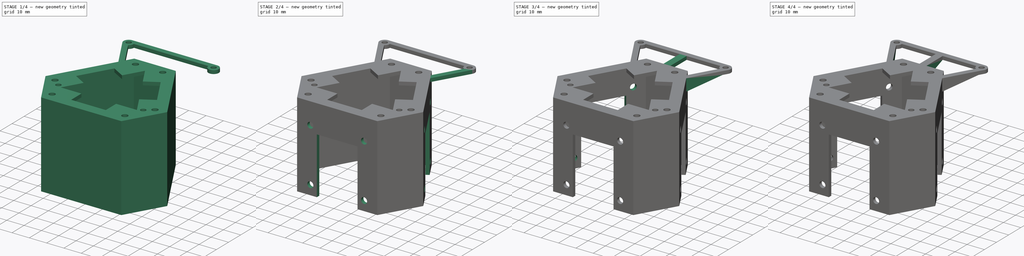
[diagram: build sequence overview — one tinted view per stage of 4, left to right]
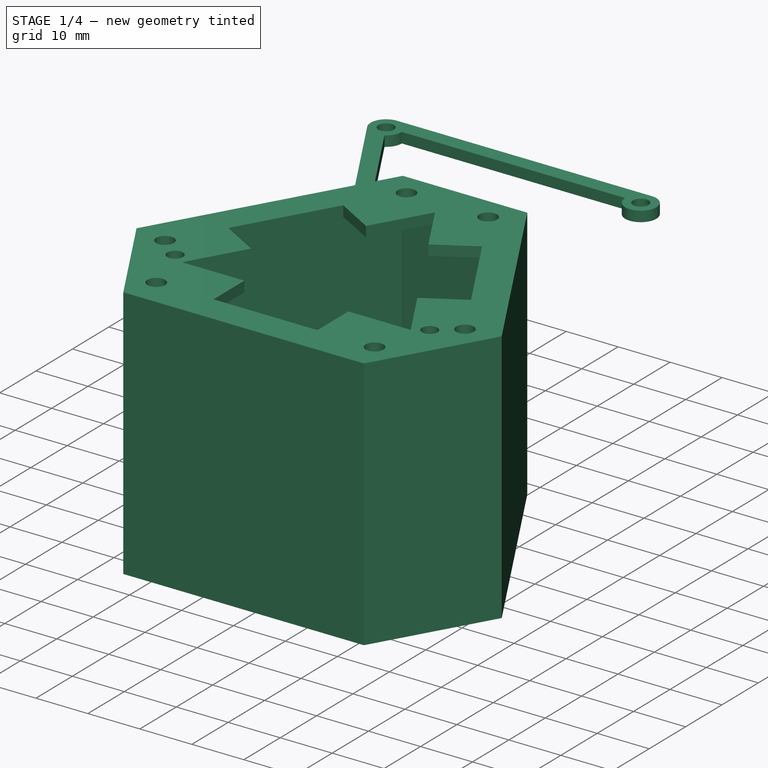
[diagram: stage 1 of 4 — iso view after this stage's code; geometry added in this stage tinted green]
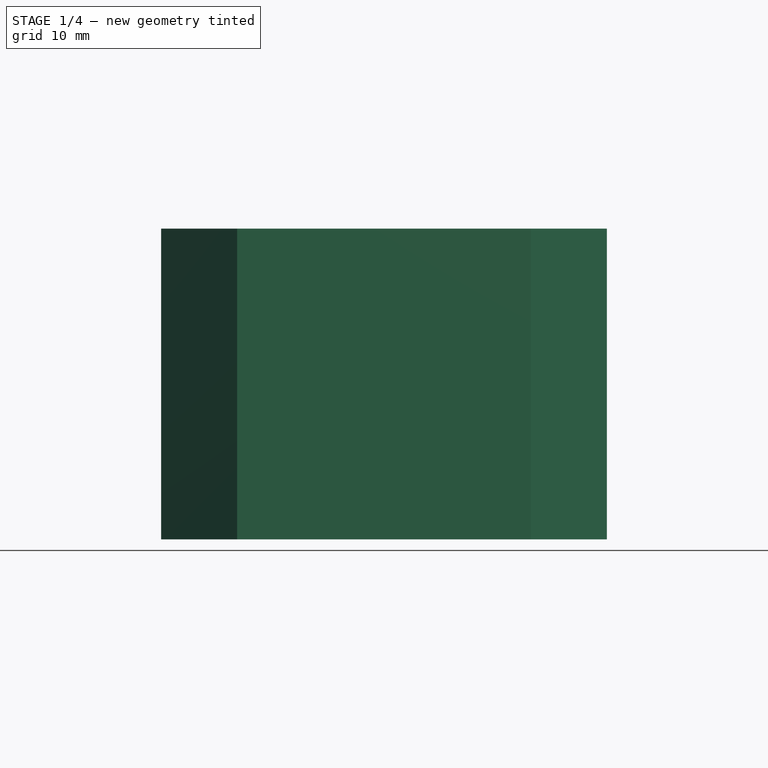
[diagram: stage 1 of 4 — front view after this stage's code; geometry added in this stage tinted green]
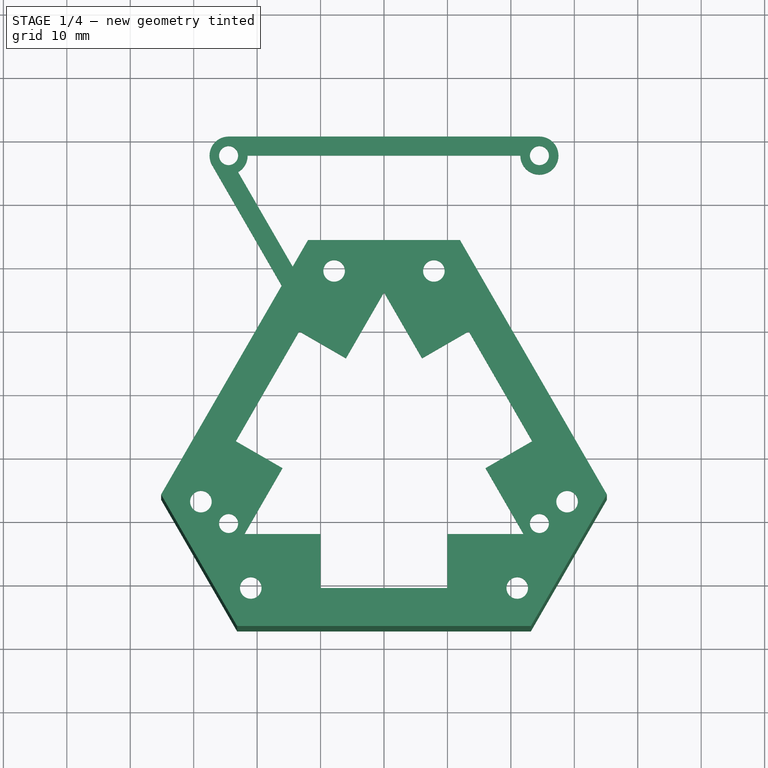
[diagram: stage 1 of 4 — top view after this stage's code; geometry added in this stage tinted green]
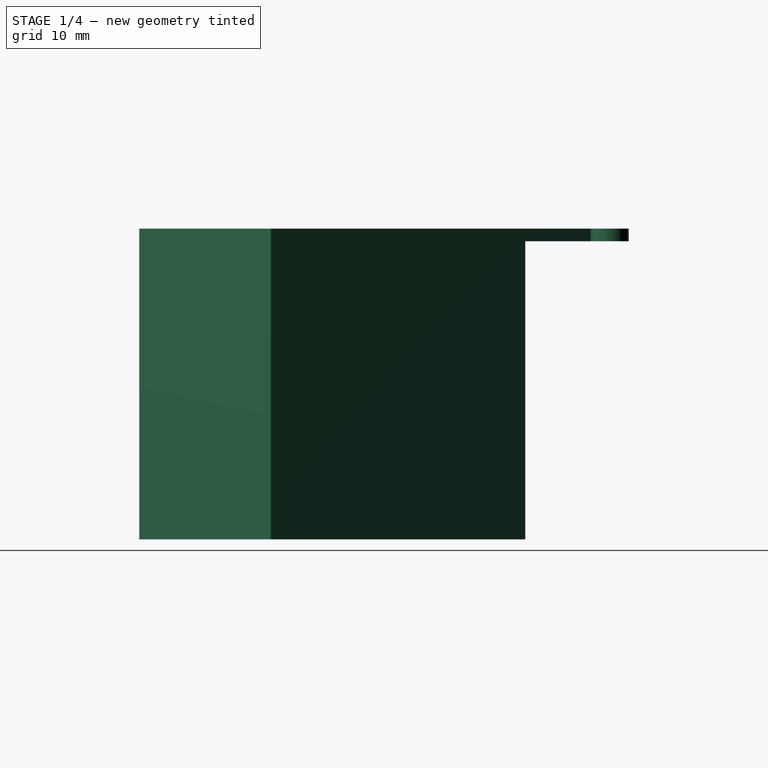
[diagram: stage 1 of 4 — right view after this stage's code; geometry added in this stage tinted green]
FCSTD DOCUMENT  (FreeCAD 1.1R20260325 (Git shallow))
Label: body
License: All rights reserved
LicenseURL: https://en.wikipedia.org/wiki/All_rights_reserved
objects: Sketcher::SketchObject×10, PartDesign::Pad×7, PartDesign::Pocket×3, App::Point×1, PartDesign::Body×1
note: 51 computed .brp shape members not serialized (recipe doc carries the construction recipe); baked Part::Feature solids carry a one-line shape summary decoded from their .brp

FEATURE [App::Point] Origin001  label="原点"
  Role = Origin
FEATURE [Sketcher::SketchObject] Sketch
  ArcFitTolerance = 1e-06
  AttachmentSupport = -> [Origin]
  ExternalTypes = [0]
  FullyConstrained = true
  MakeInternals = false
  MapMode = 5
  _ExternalGeoVersion = 1
  sketch-geometry (22):
    g0: LineSegment [constr] StartX=7.1e-15 StartY=25.4034 StartZ=0 EndX=-22 EndY=-12.7017 EndZ=0
    g1: LineSegment [constr] StartX=-22 StartY=-12.7017 StartZ=0 EndX=22 EndY=-12.7017 EndZ=0
    g2: LineSegment [constr] StartX=22 StartY=-12.7017 StartZ=0 EndX=7.1e-15 EndY=25.4034 EndZ=0
    g3: Circle [constr] CenterX=0 CenterY=0 CenterZ=0 NormalX=0 NormalY=0 NormalZ=1 AngleXU=0 Radius=25.4034
    g4: LineSegment [constr] StartX=7.1e-15 StartY=25.4034 StartZ=0 EndX=10.8253 EndY=31.6534 EndZ=0
    g5: LineSegment [constr] StartX=22 StartY=-12.7017 StartZ=0 EndX=32.8253 EndY=-6.45171 EndZ=0
    g6: LineSegment [constr] StartX=22 StartY=-12.7017 StartZ=0 EndX=22 EndY=-25.2017 EndZ=0
    g7: LineSegment [constr] StartX=-22 StartY=-12.7017 StartZ=0 EndX=-22 EndY=-25.2017 EndZ=0
    g8: LineSegment [constr] StartX=-22 StartY=-12.7017 StartZ=0 EndX=-32.8253 EndY=-6.45171 EndZ=0
    g9: LineSegment [constr] StartX=7.1e-15 StartY=25.4034 StartZ=0 EndX=-10.8253 EndY=31.6534 EndZ=0
    g10: LineSegment StartX=-10.8253 StartY=31.6534 StartZ=0 EndX=10.8253 EndY=31.6534 EndZ=0
    g11: LineSegment StartX=10.8253 StartY=31.6534 StartZ=0 EndX=32.8253 EndY=-6.45171 EndZ=0
    g12: LineSegment StartX=32.8253 StartY=-6.45171 StartZ=0 EndX=22 EndY=-25.2017 EndZ=0
    g13: LineSegment StartX=22 StartY=-25.2017 StartZ=0 EndX=-22 EndY=-25.2017 EndZ=0
    g14: LineSegment StartX=-22 StartY=-25.2017 StartZ=0 EndX=-32.8253 EndY=-6.45171 EndZ=0
    g15: LineSegment StartX=-32.8253 StartY=-6.45171 StartZ=0 EndX=-10.8253 EndY=31.6534 EndZ=0
    g16: LineSegment StartX=-11.98 StartY=33.6534 StartZ=0 EndX=11.98 EndY=33.6534 EndZ=0
    g17: LineSegment StartX=11.98 StartY=33.6534 StartZ=0 EndX=35.1347 EndY=-6.45171 EndZ=0
    g18: LineSegment StartX=35.1347 StartY=-6.45171 StartZ=0 EndX=23.1547 EndY=-27.2017 EndZ=0
    g19: LineSegment StartX=23.1547 StartY=-27.2017 StartZ=0 EndX=-23.1547 EndY=-27.2017 EndZ=0
    g20: LineSegment StartX=-23.1547 StartY=-27.2017 StartZ=0 EndX=-35.1347 EndY=-6.45171 EndZ=0
    g21: LineSegment StartX=-35.1347 StartY=-6.45171 StartZ=0 EndX=-11.98 EndY=33.6534 EndZ=0
  constraints (59):
    c: Coincident(g0,g1)
    c: Coincident(g1,g2)
    c: Coincident(g2,g0)
    c: Equal(g0,g1)
    c: Equal(g0,g2)
    c: PointOnObject(g0,g3)
    c: PointOnObject(g1,g3)
    c: PointOnObject(g2,g3)
    c: Coincident(g3,g-1)
    c: PointOnObject(g2,g-2)
    c: Distance(g0,g0) = 44  'モータ内部'
    c: Coincident(g4,g0)
    c: Perpendicular(g2,g4)
    c: Distance(g4,g4) = 12.5  'モータ厚み'
    c: Coincident(g5,g1)
    c: Coincident(g6,g1)
    c: Coincident(g7,g0)
    c: Coincident(g8,g0)
    c: Coincident(g9,g0)
    c: Perpendicular(g2,g5)
    c: Perpendicular(g1,g6)
    c: Perpendicular(g7,g1)
    c: Perpendicular(g8,g0)
    c: Perpendicular(g9,g0)
    c: Equal(g4,g5)
    c: Equal(g5,g6)
    c: Equal(g7,g8)
    c: Equal(g8,g9)
    c: Coincident(g9,g10)
    c: Coincident(g10,g4)
    c: Horizontal(g10)
    c: Coincident(g10,g11)
    c: Coincident(g11,g5)
    c: Coincident(g11,g12)
    c: Coincident(g12,g6)
    c: Coincident(g12,g13)
    c: Coincident(g13,g7)
    c: Coincident(g13,g14)
    c: Coincident(g14,g8)
    c: Coincident(g14,g15)
    c: Coincident(g15,g10)
    c: Horizontal(g16)
    c: Coincident(g16,g17)
    c: Coincident(g17,g18)
    c: Coincident(g18,g19)
    c: Horizontal(g19)
    c: Coincident(g19,g20)
    c: Coincident(g20,g21)
    c: Coincident(g21,g16)
    c: Parallel(g21,g15)
    c: Parallel(g17,g11)
    c: Parallel(g12,g18)
    c: Distance(g9,g16) = 2
    c: Distance(g4,g17) = 2
    c: Distance(g5,g18) = 2
    c: Distance(g6,g19) = 2
    c: Distance(g7,g20) = 2
    c: Distance(g8,g21) = 2
    c: Parallel(g14,g20)
FEATURE [PartDesign::Pad] Pad
  Direction = (0,0,1)
  Length = 47
  Length2 = 10
  Profile = -> Sketch
  ReferenceAxis = -> Sketch [N_Axis]
  Refine = true
  Reversed = true
  SideType = 0
  Suppressed = false
  Type = 0
  Type2 = 0
FEATURE [Sketcher::SketchObject] Sketch002
  ArcFitTolerance = 1e-06
  AttachmentSupport = -> [Pad]
  ExternalGeometry = -> [Pad]
  ExternalTypes = [0,0,0,0,0,0,0,0,0]
  FullyConstrained = false
  MakeInternals = false
  MapMode = 5
  _ExternalGeoVersion = 1
  sketch-geometry (45):
    g0: LineSegment [constr] StartX=-10.8253 StartY=31.6534 StartZ=0 EndX=0 EndY=25.4034 EndZ=0
    g1: LineSegment [constr] StartX=0 StartY=25.4034 StartZ=0 EndX=10.8253 EndY=31.6534 EndZ=0
    g2: LineSegment StartX=0 StartY=25.4034 StartZ=0 EndX=-6 EndY=15.0111 EndZ=0
    g3: LineSegment StartX=0 StartY=25.4034 StartZ=0 EndX=6 EndY=15.0111 EndZ=0
    g4: LineSegment StartX=-22 StartY=-12.7017 StartZ=0 EndX=-10 EndY=-12.7017 EndZ=0
    g5: Circle CenterX=-7.86122 CenterY=28.7874 CenterZ=0 NormalX=0 NormalY=0 NormalZ=1 AngleXU=0 Radius=1.7
    g6: LineSegment [constr] StartX=-7.86122 StartY=28.7874 StartZ=0 EndX=-28.8612 EndY=-7.58568 EndZ=0
    g7: Circle CenterX=-28.8612 CenterY=-7.58568 CenterZ=0 NormalX=0 NormalY=0 NormalZ=1 AngleXU=0 Radius=1.7
    g8: Circle CenterX=7.86122 CenterY=28.7874 CenterZ=0 NormalX=0 NormalY=0 NormalZ=1 AngleXU=0 Radius=1.7
    g9: Circle CenterX=28.8612 CenterY=-7.58568 CenterZ=0 NormalX=0 NormalY=0 NormalZ=1 AngleXU=0 Radius=1.7
    g10: Circle CenterX=-21 CenterY=-21.2017 CenterZ=0 NormalX=0 NormalY=0 NormalZ=1 AngleXU=0 Radius=1.7
    g11: Circle CenterX=21 CenterY=-21.2017 CenterZ=0 NormalX=0 NormalY=0 NormalZ=1 AngleXU=0 Radius=1.7
    g12: LineSegment [constr] StartX=7.86122 StartY=28.7874 StartZ=0 EndX=28.8612 EndY=-7.58568 EndZ=0
    g13: LineSegment [constr] StartX=-22 StartY=-12.7017 StartZ=0 EndX=-22 EndY=-25.2017 EndZ=0
    g14: LineSegment [constr] StartX=-21 StartY=-21.2017 StartZ=0 EndX=21 EndY=-21.2017 EndZ=0
    g15: LineSegment [constr] StartX=-24.5 StartY=46.9682 StartZ=0 EndX=-24.5 EndY=-11.0318 EndZ=0
    g16: LineSegment [constr] StartX=-24.5 StartY=-11.0318 StartZ=0 EndX=24.5 EndY=-11.0318 EndZ=0
    g17: LineSegment [constr] StartX=24.5 StartY=-11.0318 StartZ=0 EndX=24.5 EndY=46.9682 EndZ=0
    g18: LineSegment [constr] StartX=24.5 StartY=46.9682 StartZ=0 EndX=-24.5 EndY=46.9682 EndZ=0
    g19: Circle CenterX=24.5 CenterY=46.9682 CenterZ=0 NormalX=0 NormalY=0 NormalZ=1 AngleXU=0 Radius=1.5
    g20: Circle CenterX=-24.5 CenterY=-11.0318 CenterZ=0 NormalX=0 NormalY=0 NormalZ=1 AngleXU=0 Radius=1.5
    g21: Circle CenterX=24.5 CenterY=-11.0318 CenterZ=0 NormalX=0 NormalY=0 NormalZ=1 AngleXU=0 Radius=1.5
    g22: Circle CenterX=-24.5 CenterY=46.9682 CenterZ=0 NormalX=0 NormalY=0 NormalZ=1 AngleXU=0 Radius=1.5
    g23: ArcOfCircle CenterX=-24.5 CenterY=46.9682 CenterZ=0 NormalX=0 NormalY=0 NormalZ=1 AngleXU=0 Radius=3 StartAngle=1.5708 EndAngle=3.66519
    g24: ArcOfCircle CenterX=24.5 CenterY=46.9682 CenterZ=0 NormalX=0 NormalY=0 NormalZ=1 AngleXU=0 Radius=3 StartAngle=3.14159 EndAngle=7.85396
    g25: LineSegment StartX=-24.5 StartY=49.9682 StartZ=0 EndX=24.5001 EndY=49.9682 EndZ=0
    g26: LineSegment StartX=-21.5 StartY=46.9682 StartZ=0 EndX=21.5 EndY=46.9682 EndZ=0
    g27: LineSegment StartX=-11.98 StartY=33.6534 StartZ=0 EndX=-14.3964 EndY=29.4682 EndZ=0
    g28: LineSegment StartX=-27.0981 StartY=45.4682 StartZ=0 EndX=-16.1284 EndY=26.4682 EndZ=0
    g29: LineSegment StartX=-23 StartY=44.3701 StartZ=0 EndX=-14.3964 EndY=29.4682 EndZ=0
    g30: ArcOfCircle CenterX=-24.5 CenterY=46.9682 CenterZ=0 NormalX=0 NormalY=0 NormalZ=1 AngleXU=0 Radius=3 StartAngle=5.23599 EndAngle=6.28319
    g31: LineSegment StartX=-16.1284 StartY=26.4682 StartZ=0 EndX=-35.1347 EndY=-6.45171 EndZ=0
    g32: LineSegment StartX=11.98 StartY=33.6534 StartZ=0 EndX=35.1347 EndY=-6.45171 EndZ=0
    g33: LineSegment StartX=-6 StartY=15.0111 StartZ=0 EndX=-13.3612 EndY=19.2611 EndZ=0
    g34: LineSegment StartX=-13.3612 StartY=19.2611 StartZ=0 EndX=-23.3612 EndY=1.9406 EndZ=0
    g35: LineSegment StartX=-23.3612 StartY=1.9406 StartZ=0 EndX=-16 EndY=-2.3094 EndZ=0
    g36: LineSegment StartX=-16 StartY=-2.3094 StartZ=0 EndX=-22 EndY=-12.7017 EndZ=0
    g37: LineSegment StartX=6 StartY=15.0111 StartZ=0 EndX=13.3612 EndY=19.2611 EndZ=0
    g38: LineSegment StartX=13.3612 StartY=19.2611 StartZ=0 EndX=23.3612 EndY=1.9406 EndZ=0
    g39: LineSegment StartX=23.3612 StartY=1.9406 StartZ=0 EndX=16 EndY=-2.3094 EndZ=0
    g40: LineSegment StartX=16 StartY=-2.3094 StartZ=0 EndX=22 EndY=-12.7017 EndZ=0
    g41: LineSegment StartX=-10 StartY=-12.7017 StartZ=0 EndX=-10 EndY=-21.2017 EndZ=0
    g42: LineSegment StartX=-10 StartY=-21.2017 StartZ=0 EndX=10 EndY=-21.2017 EndZ=0
    g43: LineSegment StartX=10 StartY=-21.2017 StartZ=0 EndX=10 EndY=-12.7017 EndZ=0
    g44: LineSegment StartX=10 StartY=-12.7017 StartZ=0 EndX=22 EndY=-12.7017 EndZ=0
  constraints (119):
    c: Coincident(g0,g-9)
    c: PointOnObject(g0,g-2)
    c: Perpendicular(g-9,g0)
    c: Coincident(g1,g0)
    c: Coincident(g1,g-7)
    c: Coincident(g2,g0)
    c: Coincident(g3,g0)
    c: Coincident(g4,g36)
    c: Coincident(g44,g40)
    c: Distance(g5,g-9) = 4
    c: Distance(g5,g0) = 1
    c: Diameter(g5) = 3.4
    c: Distance(g6) = 42
    c: Coincident(g6,g5)
    c: Parallel(g6,g-9)
    c: Coincident(g7,g6)
    c: Equal(g5,g7)
    c: Equal(g5,g8)
    c: Equal(g5,g9)
    c: Equal(g5,g11)
    c: Equal(g5,g10)
    c: Distance(g8,g-7) = 4
    c: Distance(g8,g1) = 1
    c: Coincident(g12,g8)
    c: Coincident(g12,g9)
    c: Equal(g12,g6)
    c: Parallel(g-7,g12)
    c: Coincident(g13,g36)
    c: Coincident(g13,g-8)
    c: Distance(g10,g-8) = 4
    c: Coincident(g14,g10)
    c: Coincident(g14,g11)
    c: Parallel(g14,g-8)
    c: Coincident(g15,g16)
    c: Coincident(g16,g17)
    c: Coincident(g17,g18)
    c: Coincident(g18,g15)
    c: Vertical(g15)
    c: Vertical(g17)
    c: Horizontal(g16)
    c: Horizontal(g18)
    c: Distance(g15,g17) = 49
    c: Distance(g16,g18) = 58
    c: Distance(g17,g-2) = 24.5
    c: Coincident(g19,g17)
    c: Coincident(g20,g15)
    c: Coincident(g21,g16)
    c: Diameter(g19) = 3
    c: Equal(g19,g21)
    c: Equal(g19,g20)
    c: Coincident(g22,g15)
    c: Equal(g19,g22)
    c: Coincident(g23,g15)
    c: Coincident(g24,g17)
    c: Horizontal(g25)
    c: Horizontal(g26)
    c: Distance(g26,g25) = 3
    c: Tangent(g25,g23) = 1.5708
    c: PointOnObject(g30,g18)
    c: Diameter(g24) = 6
    c: Coincident(g25,g24)
    c: PointOnObject(g26,g24)
    c: PointOnObject(g24,g18)
    c: Coincident(g27,g-3)
    c: Coincident(g31,g-6)
    c: Angle(g28,g18) = 1.0472
    c: Parallel(g29,g28)
    c: Distance(g29,g28) = 3
    c: PointOnObject(g26,g30)
    c: Coincident(g29,g30)
    c: Coincident(g23,g30)
    c: Tangent(g28,g23) = -1.5708
    c: Coincident(g28,g31)
    c: Coincident(g29,g27)
    c: Coincident(g32,g-3)
    c: Coincident(g32,g-4)
    c: Coincident(g33,g34)
    c: Coincident(g34,g35)
    c: Parallel(g0,g33)
    c: Parallel(g33,g35)
    c: Distance(g33,g0) = 12
    c: Perpendicular(g34,g33)
    c: Distance(g34,g34) = 20
    c: Distance(g33,g-9) = 4
    c: Parallel(g2,g-9)
    c: Parallel(g36,g-9)
    c: Coincident(g33,g2)
    c: Coincident(g35,g36)
    c: Coincident(g37,g38)
    c: Coincident(g38,g39)
    c: Parallel(g37,g1)
    c: Parallel(g37,g39)
    c: Distance(g37,g1) = 12
    c: Perpendicular(g37,g38)
    c: Distance(g38,g38) = 20
    c: Distance(g37,g-7) = 4
    c: Parallel(g3,g-7)
    c: Parallel(g40,g-7)
    c: Distance(g16,g40) = 3
    c: Coincident(g37,g3)
    c: Coincident(g39,g40)
    c: Vertical(g41)
    c: Coincident(g41,g42)
    c: Horizontal(g42)
    c: Coincident(g42,g43)
    c: Vertical(g43)
    c: Distance(g42) = 20
    c: Distance(g42,g-8) = 4
    c: Distance(g4,g41) = 12
    c: Coincident(g41,g4)
    c: Coincident(g43,g44)
    c: Vertical(g13)
    c: Distance(g44) = 12
    c: Equal(g3,g40)
    c: Equal(g2,g36)
    c: Horizontal(g4)
    c: Horizontal(g44)
    c: Distance(g10,g13) = 1
    c: DistanceX(g14,g14) = 42
FEATURE [PartDesign::Pad] Pad001
  BaseFeature = -> Pad
  Direction = (0,0,1)
  Length = 2
  Length2 = 10
  Profile = -> Sketch002
  ReferenceAxis = -> Sketch002 [N_Axis]
  Refine = true
  SideType = 0
  Suppressed = false
  Type = 0
  Type2 = 0
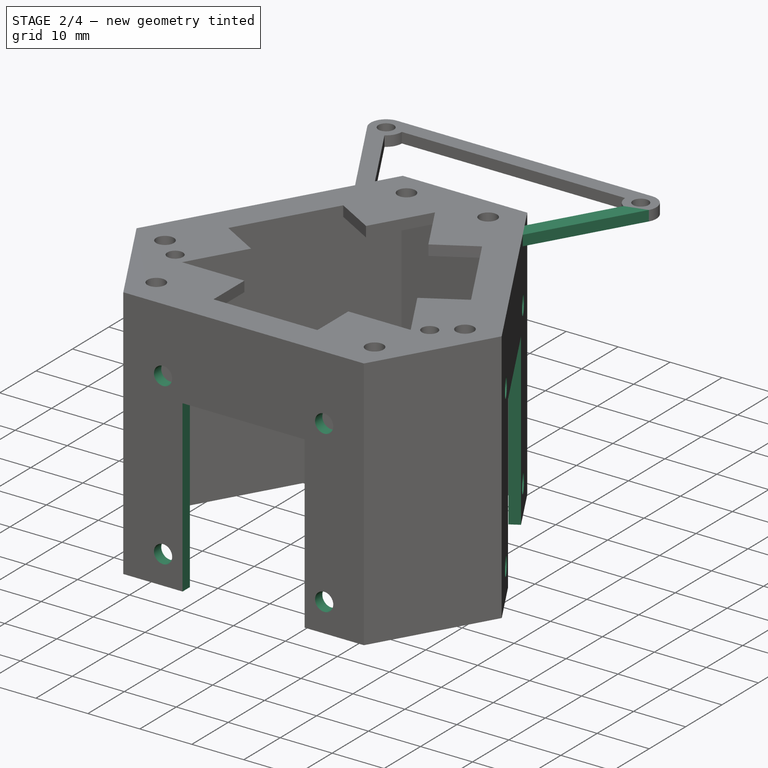
[diagram: stage 2 of 4 — iso view after this stage's code; geometry added in this stage tinted green]
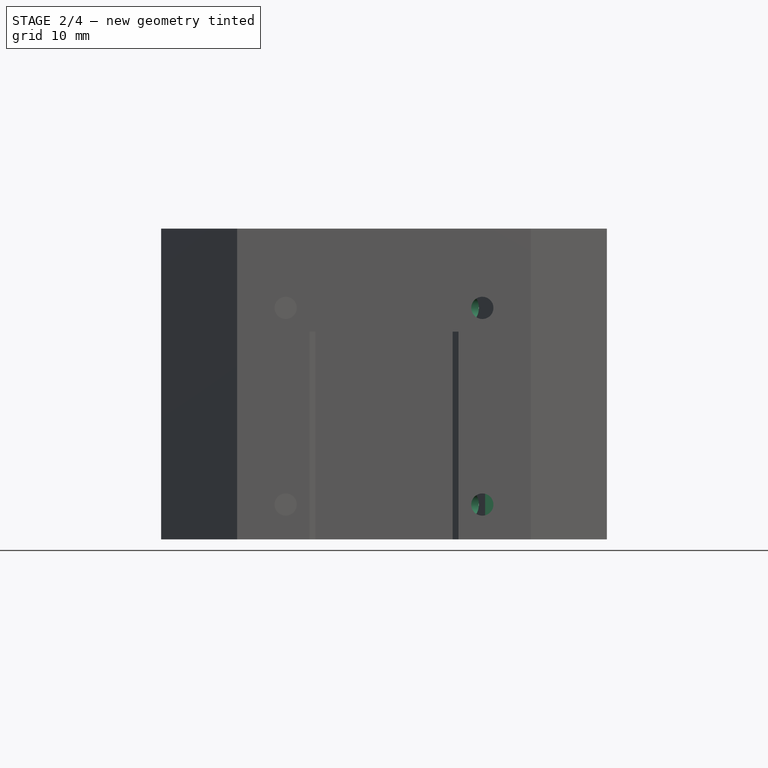
[diagram: stage 2 of 4 — front view after this stage's code; geometry added in this stage tinted green]
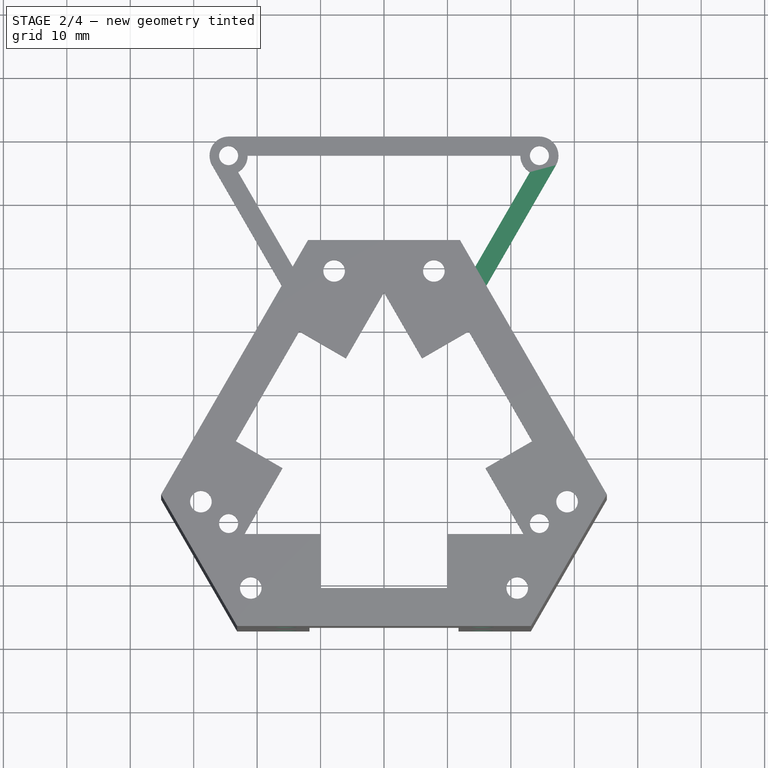
[diagram: stage 2 of 4 — top view after this stage's code; geometry added in this stage tinted green]
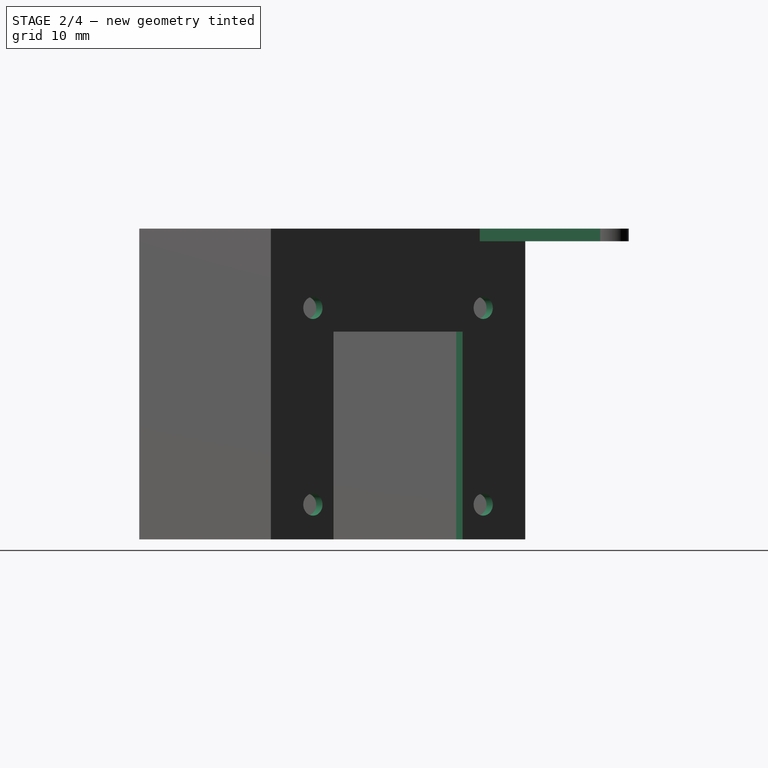
[diagram: stage 2 of 4 — right view after this stage's code; geometry added in this stage tinted green]
FEATURE [Sketcher::SketchObject] Sketch003
  ArcFitTolerance = 1e-06
  AttachmentSupport = -> [Pad001]
  ExternalGeometry = -> [Pad001]
  ExternalTypes = [0,0,0]
  FullyConstrained = true
  MakeInternals = false
  MapMode = 5
  Placement = pos=(0,0,0) rot=(1,0,0;3.14159rad)
  _ExternalGeoVersion = 1
  sketch-geometry (4):
    g0: LineSegment StartX=16.1284 StartY=-26.4682 StartZ=0 EndX=27.0981 EndY=-45.4682 EndZ=0
    g1: LineSegment StartX=23 StartY=-44.3701 StartZ=0 EndX=14.3964 EndY=-29.4682 EndZ=0
    g2: LineSegment StartX=16.1284 StartY=-26.4682 StartZ=0 EndX=14.3964 EndY=-29.4682 EndZ=0
    g3: LineSegment StartX=27.0981 StartY=-45.4682 StartZ=0 EndX=23 EndY=-44.3701 EndZ=0
  constraints (11):
    c: PointOnObject(g0,g-4)
    c: Tangent(g0,g-3) = 1.5708
    c: Angle(g0,g-5) = 1.0472
    c: PointOnObject(g1,g-3)
    c: PointOnObject(g1,g-4)
    c: Parallel(g0,g1)
    c: Distance(g1,g0) = 3
    c: Coincident(g2,g0)
    c: Coincident(g2,g1)
    c: Coincident(g3,g0)
    c: Coincident(g3,g1)
FEATURE [PartDesign::Pad] Pad002
  BaseFeature = -> Pad001
  Direction = (0,0,-1)
  Length = 2
  Length2 = 10
  Profile = -> Sketch003
  ReferenceAxis = -> Sketch003 [N_Axis]
  Refine = true
  Reversed = true
  SideType = 0
  Suppressed = false
  Type = 0
  Type2 = 0
FEATURE [Sketcher::SketchObject] Sketch004
  ArcFitTolerance = 1e-06
  AttachmentSupport = -> [Pad002]
  ExternalGeometry = -> [Pad002]
  ExternalTypes = [0]
  FullyConstrained = true
  MakeInternals = false
  MapMode = 5
  Placement = pos=(0,-27.2017,0) rot=(1,0,0;1.5708rad)
  _ExternalGeoVersion = 1
  sketch-geometry (12):
    g0: LineSegment [constr] StartX=-15.5 StartY=-10.5 StartZ=0 EndX=-15.5 EndY=-41.5 EndZ=0
    g1: LineSegment [constr] StartX=-15.5 StartY=-41.5 StartZ=0 EndX=15.5 EndY=-41.5 EndZ=0
    g2: LineSegment [constr] StartX=15.5 StartY=-41.5 StartZ=0 EndX=15.5 EndY=-10.5 EndZ=0
    g3: LineSegment [constr] StartX=15.5 StartY=-10.5 StartZ=0 EndX=-15.5 EndY=-10.5 EndZ=0
    g4: Circle CenterX=15.5 CenterY=-10.5 CenterZ=0 NormalX=0 NormalY=0 NormalZ=1 AngleXU=0 Radius=1.75
    g5: Circle CenterX=-15.5 CenterY=-10.5 CenterZ=0 NormalX=0 NormalY=0 NormalZ=1 AngleXU=0 Radius=1.75
    g6: Circle CenterX=-15.5 CenterY=-41.5 CenterZ=0 NormalX=0 NormalY=0 NormalZ=1 AngleXU=0 Radius=1.75
    g7: Circle CenterX=15.5 CenterY=-41.5 CenterZ=0 NormalX=0 NormalY=0 NormalZ=1 AngleXU=0 Radius=1.75
    g8: LineSegment StartX=-11.75 StartY=-47 StartZ=0 EndX=11.75 EndY=-47 EndZ=0
    g9: LineSegment StartX=11.75 StartY=-47 StartZ=0 EndX=11.75 EndY=-14.25 EndZ=0
    g10: LineSegment StartX=11.75 StartY=-14.25 StartZ=0 EndX=-11.75 EndY=-14.25 EndZ=0
    g11: LineSegment StartX=-11.75 StartY=-14.25 StartZ=0 EndX=-11.75 EndY=-47 EndZ=0
  constraints (32):
    c: Coincident(g0,g1)
    c: Coincident(g1,g2)
    c: Coincident(g2,g3)
    c: Coincident(g3,g0)
    c: Vertical(g0)
    c: Vertical(g2)
    c: Horizontal(g1)
    c: Horizontal(g3)
    c: Distance(g0,g2) = 31
    c: Distance(g1,g3) = 31
    c: Distance(g1,g-3) = 5.5
    c: Distance(g2,g-2) = 15.5
    c: Coincident(g4,g2)
    c: Coincident(g5,g0)
    c: Coincident(g6,g0)
    c: Coincident(g7,g1)
    c: Diameter(g4) = 3.5
    c: Equal(g5,g4)
    c: Equal(g4,g6)
    c: Equal(g4,g7)
    c: Coincident(g8,g9)
    c: Coincident(g9,g10)
    c: Coincident(g10,g11)
    c: Coincident(g11,g8)
    c: Horizontal(g8)
    c: Horizontal(g10)
    c: Vertical(g9)
    c: Vertical(g11)
    c: PointOnObject(g8,g-3)
    c: Distance(g10,g0) = 3.75
    c: Distance(g10,g3) = 3.75
    c: Distance(g9,g2) = 3.75
FEATURE [PartDesign::Pocket] Pocket
  BaseFeature = -> Pad002
  Direction = (0,1,-2e-16)
  Length = 2
  Length2 = 5
  Profile = -> Sketch004
  ReferenceAxis = -> Sketch004 [N_Axis]
  Refine = true
  SideType = 0
  Suppressed = false
  Type = 0
  Type2 = 0
FEATURE [Sketcher::SketchObject] Sketch005
  ArcFitTolerance = 1e-06
  AttachmentSupport = -> [Pocket]
  ExternalGeometry = -> [Pocket]
  ExternalTypes = [0]
  FullyConstrained = true
  MakeInternals = false
  MapMode = 5
  Placement = pos=(23.5574,13.6009,0) rot=(0.377964,0.654654,0.654654;2.41886rad)
  _ExternalGeoVersion = 1
  sketch-geometry (12):
    g0: LineSegment [constr] StartX=-15.5 StartY=-10.5 StartZ=0 EndX=-15.5 EndY=-41.5 EndZ=0
    g1: LineSegment [constr] StartX=-15.5 StartY=-41.5 StartZ=0 EndX=15.5 EndY=-41.5 EndZ=0
    g2: LineSegment [constr] StartX=15.5 StartY=-41.5 StartZ=0 EndX=15.5 EndY=-10.5 EndZ=0
    g3: LineSegment [constr] StartX=15.5 StartY=-10.5 StartZ=0 EndX=-15.5 EndY=-10.5 EndZ=0
    g4: Circle CenterX=15.5 CenterY=-10.5 CenterZ=0 NormalX=0 NormalY=0 NormalZ=1 AngleXU=0 Radius=1.75
    g5: Circle CenterX=-15.5 CenterY=-10.5 CenterZ=0 NormalX=0 NormalY=0 NormalZ=1 AngleXU=0 Radius=1.75
    g6: Circle CenterX=-15.5 CenterY=-41.5 CenterZ=0 NormalX=0 NormalY=0 NormalZ=1 AngleXU=0 Radius=1.75
    g7: Circle CenterX=15.5 CenterY=-41.5 CenterZ=0 NormalX=0 NormalY=0 NormalZ=1 AngleXU=0 Radius=1.75
    g8: LineSegment StartX=-11.75 StartY=-47 StartZ=0 EndX=11.75 EndY=-47 EndZ=0
    g9: LineSegment StartX=11.75 StartY=-47 StartZ=0 EndX=11.75 EndY=-14.25 EndZ=0
    g10: LineSegment StartX=11.75 StartY=-14.25 StartZ=0 EndX=-11.75 EndY=-14.25 EndZ=0
    g11: LineSegment StartX=-11.75 StartY=-14.25 StartZ=0 EndX=-11.75 EndY=-47 EndZ=0
  constraints (32):
    c: Coincident(g0,g1)
    c: Coincident(g1,g2)
    c: Coincident(g2,g3)
    c: Coincident(g3,g0)
    c: Vertical(g0)
    c: Vertical(g2)
    c: Horizontal(g1)
    c: Horizontal(g3)
    c: Distance(g0,g2) = 31
    c: Distance(g1,g3) = 31
    c: Distance(g2,g-2) = 15.5
    c: Distance(g1,g-3) = 5.5
    c: Coincident(g4,g2)
    c: Coincident(g5,g0)
    c: Coincident(g6,g0)
    c: Coincident(g7,g1)
    c: Diameter(g4) = 3.5
    c: Equal(g5,g4)
    c: Equal(g6,g4)
    c: Equal(g7,g4)
    c: Coincident(g8,g9)
    c: Coincident(g9,g10)
    c: Coincident(g10,g11)
    c: Coincident(g11,g8)
    c: Horizontal(g8)
    c: Horizontal(g10)
    c: Vertical(g9)
    c: Vertical(g11)
    c: PointOnObject(g8,g-3)
    c: Distance(g10,g0) = 3.75
    c: Distance(g10,g3) = 3.75
    c: Distance(g9,g2) = 3.75
FEATURE [PartDesign::Pocket] Pocket001
  BaseFeature = -> Pocket
  Direction = (-0.866025,-0.5,1e-16)
  Length = 2
  Length2 = 5
  Profile = -> Sketch005
  ReferenceAxis = -> Sketch005 [N_Axis]
  Refine = true
  SideType = 0
  Suppressed = false
  Type = 0
  Type2 = 0
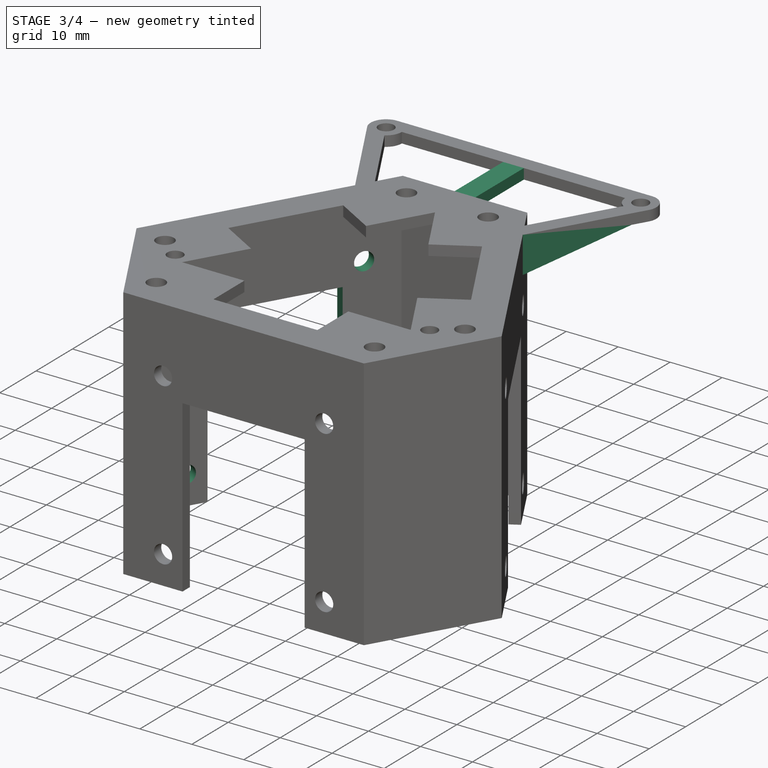
[diagram: stage 3 of 4 — iso view after this stage's code; geometry added in this stage tinted green]
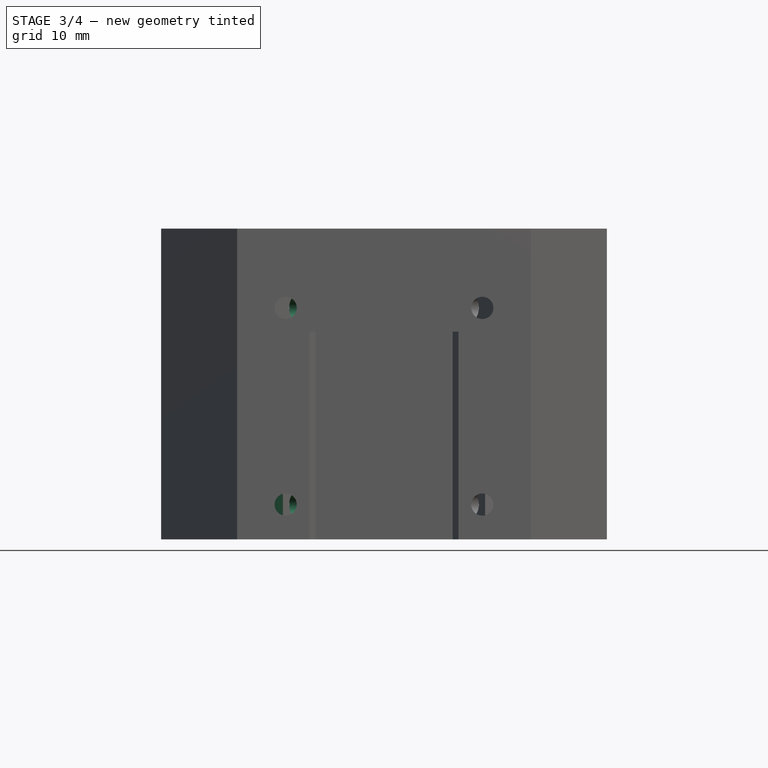
[diagram: stage 3 of 4 — front view after this stage's code; geometry added in this stage tinted green]
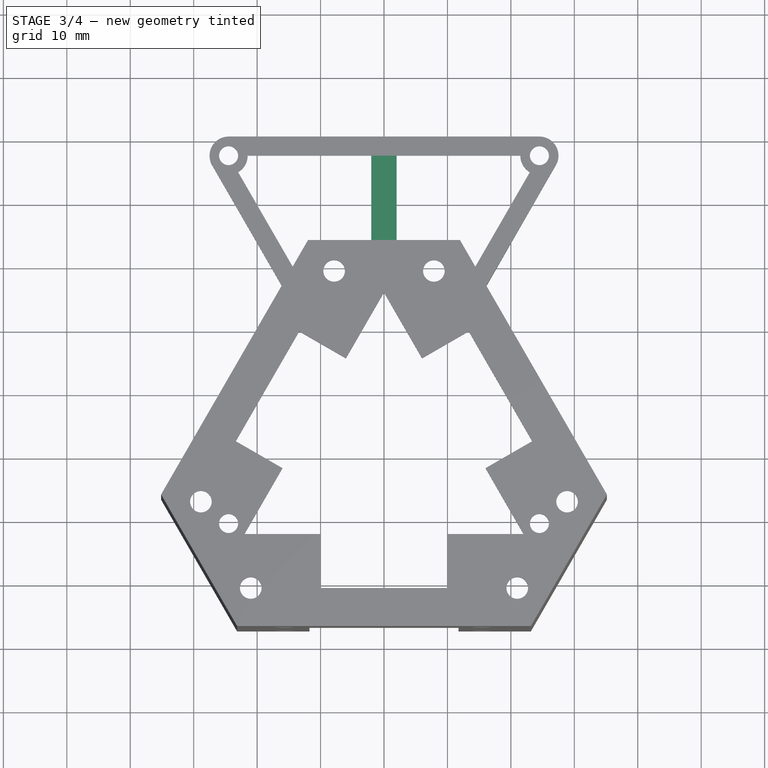
[diagram: stage 3 of 4 — top view after this stage's code; geometry added in this stage tinted green]
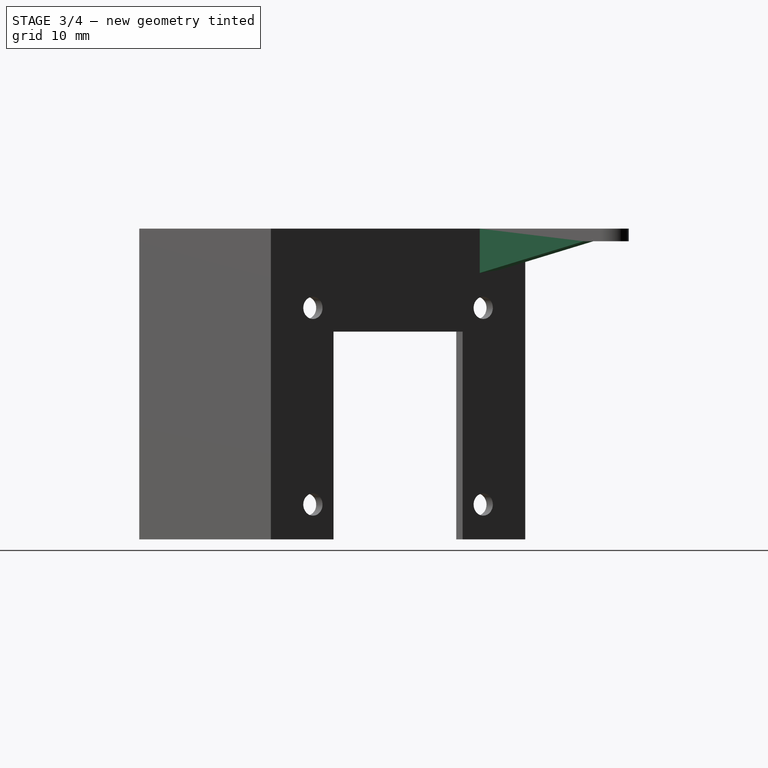
[diagram: stage 3 of 4 — right view after this stage's code; geometry added in this stage tinted green]
FEATURE [Sketcher::SketchObject] Sketch006
  ArcFitTolerance = 1e-06
  AttachmentSupport = -> [Pocket001]
  ExternalGeometry = -> [Pocket001]
  ExternalTypes = [0]
  FullyConstrained = true
  MakeInternals = false
  MapMode = 5
  Placement = pos=(-23.5574,13.6009,3.87e-14) rot=(-0.377964,0.654654,0.654654;3.86433rad)
  _ExternalGeoVersion = 1
  sketch-geometry (12):
    g0: LineSegment [constr] StartX=-15.5 StartY=-10.5 StartZ=0 EndX=-15.5 EndY=-41.5 EndZ=0
    g1: LineSegment [constr] StartX=-15.5 StartY=-41.5 StartZ=0 EndX=15.5 EndY=-41.5 EndZ=0
    g2: LineSegment [constr] StartX=15.5 StartY=-41.5 StartZ=0 EndX=15.5 EndY=-10.5 EndZ=0
    g3: LineSegment [constr] StartX=15.5 StartY=-10.5 StartZ=0 EndX=-15.5 EndY=-10.5 EndZ=0
    g4: Circle CenterX=15.5 CenterY=-10.5 CenterZ=0 NormalX=0 NormalY=0 NormalZ=1 AngleXU=0 Radius=1.75
    g5: Circle CenterX=-15.5 CenterY=-10.5 CenterZ=0 NormalX=0 NormalY=0 NormalZ=1 AngleXU=0 Radius=1.75
    g6: Circle CenterX=-15.5 CenterY=-41.5 CenterZ=0 NormalX=0 NormalY=0 NormalZ=1 AngleXU=0 Radius=1.75
    g7: Circle CenterX=15.5 CenterY=-41.5 CenterZ=0 NormalX=0 NormalY=0 NormalZ=1 AngleXU=0 Radius=1.75
    g8: LineSegment StartX=-11.75 StartY=-47 StartZ=0 EndX=11.75 EndY=-47 EndZ=0
    g9: LineSegment StartX=11.75 StartY=-47 StartZ=0 EndX=11.75 EndY=-14.25 EndZ=0
    g10: LineSegment StartX=11.75 StartY=-14.25 StartZ=0 EndX=-11.75 EndY=-14.25 EndZ=0
    g11: LineSegment StartX=-11.75 StartY=-14.25 StartZ=0 EndX=-11.75 EndY=-47 EndZ=0
  constraints (32):
    c: Coincident(g0,g1)
    c: Coincident(g1,g2)
    c: Coincident(g2,g3)
    c: Coincident(g3,g0)
    c: Vertical(g0)
    c: Vertical(g2)
    c: Horizontal(g1)
    c: Horizontal(g3)
    c: DistanceX(g3,g3) = 31
    c: DistanceY(g0,g0) = 31
    c: Distance(g2,g-2) = 15.5
    c: Distance(g1,g-3) = 5.5
    c: Coincident(g5,g0)
    c: Coincident(g6,g0)
    c: Coincident(g7,g1)
    c: Diameter(g4) = 3.5
    c: Equal(g4,g5)
    c: Equal(g4,g6)
    c: Equal(g7,g4)
    c: Coincident(g8,g9)
    c: Coincident(g9,g10)
    c: Coincident(g10,g11)
    c: Coincident(g11,g8)
    c: Horizontal(g8)
    c: Horizontal(g10)
    c: Vertical(g9)
    c: Vertical(g11)
    c: PointOnObject(g8,g-3)
    c: Distance(g10,g0) = 3.75
    c: Distance(g10,g3) = 3.75
    c: Distance(g9,g2) = 3.75
    c: Coincident(g4,g2)
FEATURE [PartDesign::Pocket] Pocket002
  BaseFeature = -> Pocket001
  Direction = (0.866025,-0.5,-1.5e-15)
  Length = 2
  Length2 = 5
  Profile = -> Sketch006
  ReferenceAxis = -> Sketch006 [N_Axis]
  Refine = true
  SideType = 0
  Suppressed = false
  Type = 0
  Type2 = 0
FEATURE [Sketcher::SketchObject] Sketch007
  ArcFitTolerance = 1e-06
  AttachmentSupport = -> [Pocket002]
  ExternalGeometry = -> [Pocket002]
  ExternalTypes = [0,0]
  FullyConstrained = true
  MakeInternals = false
  MapMode = 5
  Placement = pos=(0,0,2) rot=(0,0,1;0rad)
  _ExternalGeoVersion = 1
  sketch-geometry (4):
    g0: LineSegment StartX=-2 StartY=46.9682 StartZ=0 EndX=-2 EndY=33.6534 EndZ=0
    g1: LineSegment StartX=-2 StartY=33.6534 StartZ=0 EndX=2 EndY=33.6534 EndZ=0
    g2: LineSegment StartX=2 StartY=33.6534 StartZ=0 EndX=2 EndY=46.9682 EndZ=0
    g3: LineSegment StartX=2 StartY=46.9682 StartZ=0 EndX=-2 EndY=46.9682 EndZ=0
  constraints (12):
    c: Coincident(g0,g1)
    c: Coincident(g1,g2)
    c: Coincident(g2,g3)
    c: Coincident(g3,g0)
    c: Vertical(g0)
    c: Vertical(g2)
    c: Horizontal(g1)
    c: Horizontal(g3)
    c: PointOnObject(g0,g-3)
    c: PointOnObject(g1,g-4)
    c: DistanceX(g3,g3) = 4
    c: Distance(g2,g-2) = 2
FEATURE [PartDesign::Pad] Pad003
  BaseFeature = -> Pocket002
  Direction = (0,0,1)
  Length = 2
  Length2 = 10
  Profile = -> Sketch007
  ReferenceAxis = -> Sketch007 [N_Axis]
  Refine = true
  Reversed = true
  SideType = 0
  Suppressed = false
  Type = 0
  Type2 = 0
FEATURE [Sketcher::SketchObject] Sketch008
  ArcFitTolerance = 1e-06
  AttachmentSupport = -> [Pad003]
  ExternalGeometry = -> [Pad003]
  ExternalTypes = [0,0,0]
  FullyConstrained = true
  MakeInternals = false
  MapMode = 5
  Placement = pos=(-1.96281,1.13323,0) rot=(-0.377964,0.654654,0.654654;3.86433rad)
  _ExternalGeoVersion = 1
  sketch-geometry (3):
    g0: LineSegment StartX=-49.9256 StartY=9e-16 StartZ=0 EndX=-30.9863 EndY=-2.5e-15 EndZ=0
    g1: LineSegment StartX=-30.9863 StartY=-2.5e-15 StartZ=0 EndX=-30.9863 EndY=-5 EndZ=0
    g2: LineSegment StartX=-30.9863 StartY=-5 StartZ=0 EndX=-49.9256 EndY=9e-16 EndZ=0
  constraints (7):
    c: Coincident(g-3,g0)
    c: Coincident(g0,g-4)
    c: Coincident(g0,g1)
    c: Vertical(g1)
    c: Coincident(g1,g2)
    c: Coincident(g2,g0)
    c: DistanceY(g1,g1) = 5
FEATURE [PartDesign::Pad] Pad004
  BaseFeature = -> Pad003
  Direction = (-0.866025,0.5,-1e-16)
  Length = 3
  Length2 = 10
  Profile = -> Sketch008
  ReferenceAxis = -> Sketch008 [N_Axis]
  Refine = true
  Reversed = true
  SideType = 0
  Suppressed = false
  Type = 0
  Type2 = 0
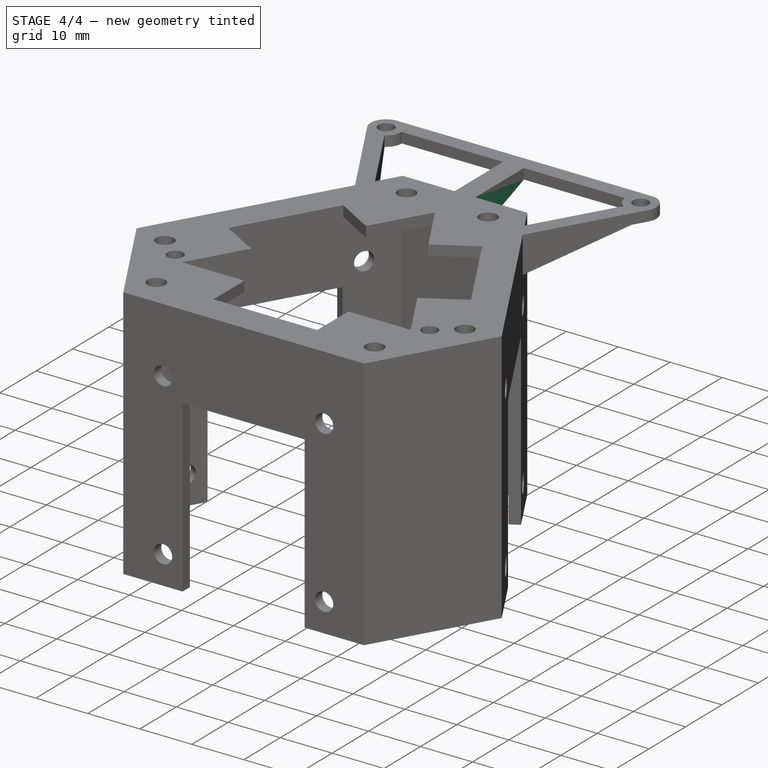
[diagram: stage 4 of 4 — iso view after this stage's code; geometry added in this stage tinted green]
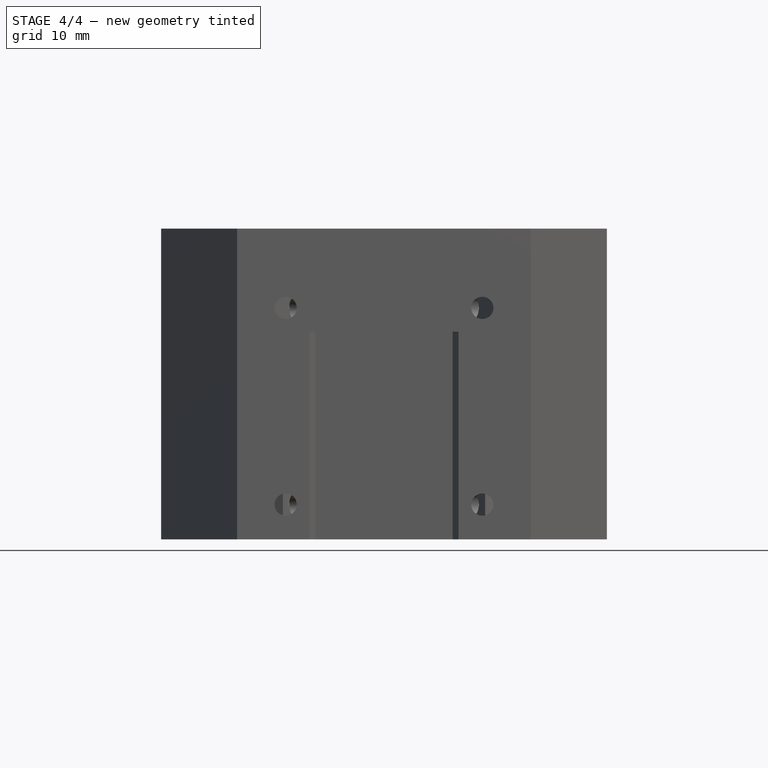
[diagram: stage 4 of 4 — front view after this stage's code; geometry added in this stage tinted green]
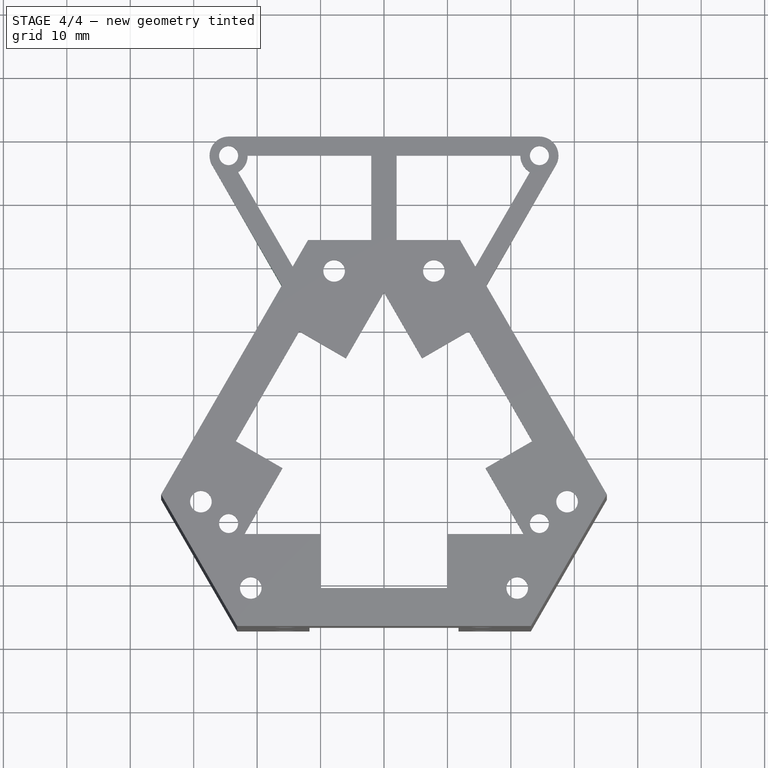
[diagram: stage 4 of 4 — top view after this stage's code; geometry added in this stage tinted green]
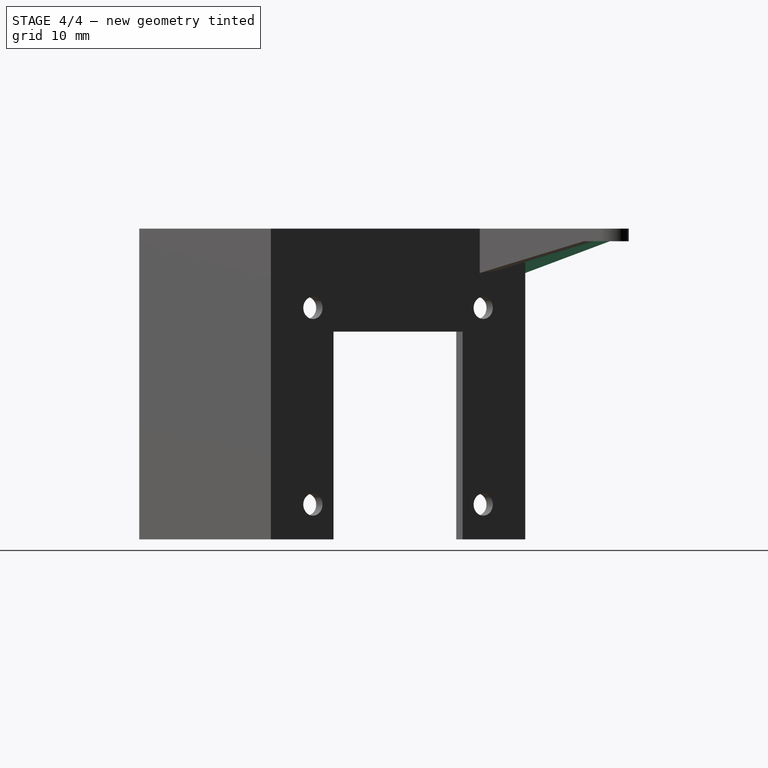
[diagram: stage 4 of 4 — right view after this stage's code; geometry added in this stage tinted green]
FEATURE [Sketcher::SketchObject] Sketch009
  ArcFitTolerance = 1e-06
  AttachmentSupport = -> [Pad004]
  ExternalGeometry = -> [Pad004]
  ExternalTypes = [0,0]
  FullyConstrained = true
  MakeInternals = false
  MapMode = 5
  Placement = pos=(1.96281,1.13323,0) rot=(0.377964,0.654654,0.654654;2.41886rad)
  _ExternalGeoVersion = 1
  sketch-geometry (3):
    g0: LineSegment StartX=49.9256 StartY=0 StartZ=0 EndX=30.9863 EndY=-2.5e-15 EndZ=0
    g1: LineSegment StartX=30.9863 StartY=-2.5e-15 StartZ=0 EndX=30.9863 EndY=-5 EndZ=0
    g2: LineSegment StartX=30.9863 StartY=-5 StartZ=0 EndX=49.9256 EndY=0 EndZ=0
  constraints (7):
    c: Coincident(g-3,g0)
    c: Coincident(g0,g-4)
    c: Coincident(g0,g1)
    c: Vertical(g1)
    c: Coincident(g1,g2)
    c: Coincident(g2,g0)
    c: DistanceY(g1,g1) = 5
FEATURE [PartDesign::Pad] Pad005
  BaseFeature = -> Pad004
  Direction = (0.866025,0.5,-1e-16)
  Length = 3
  Length2 = 10
  Profile = -> Sketch009
  ReferenceAxis = -> Sketch009 [N_Axis]
  Refine = true
  Reversed = true
  SideType = 0
  Suppressed = false
  Type = 0
  Type2 = 0
FEATURE [Sketcher::SketchObject] Sketch010
  ArcFitTolerance = 1e-06
  AttachmentSupport = -> [Pad005]
  ExternalGeometry = -> [Pad005]
  ExternalTypes = [0,0]
  FullyConstrained = true
  MakeInternals = false
  MapMode = 5
  Placement = pos=(-2,0,0) rot=(0.57735,-0.57735,-0.57735;2.0944rad)
  _ExternalGeoVersion = 1
  sketch-geometry (3):
    g0: LineSegment StartX=-46.9682 StartY=0 StartZ=0 EndX=-33.6534 EndY=0 EndZ=0
    g1: LineSegment StartX=-33.6534 StartY=0 StartZ=0 EndX=-33.6534 EndY=-5 EndZ=0
    g2: LineSegment StartX=-33.6534 StartY=-5 StartZ=0 EndX=-46.9682 EndY=0 EndZ=0
  constraints (7):
    c: Coincident(g-4,g0)
    c: Coincident(g0,g-3)
    c: Coincident(g0,g1)
    c: Vertical(g1)
    c: Coincident(g1,g2)
    c: Coincident(g2,g0)
    c: DistanceY(g1,g1) = 5
FEATURE [PartDesign::Pad] Pad006
  BaseFeature = -> Pad005
  Direction = (-1,0,0)
  Length = 4
  Length2 = 10
  Profile = -> Sketch010
  ReferenceAxis = -> Sketch010 [N_Axis]
  Refine = true
  Reversed = true
  SideType = 0
  Suppressed = false
  Type = 0
  Type2 = 0
FEATURE [PartDesign::Body] Body
  AllowCompound = true
  Group = -> [Sketch,Pad,Sketch002,Pad001,Sketch003,Pad002,Sketch004,Pocket,Sketch005,Pocket001,Sketch006,Pocket002,Sketch007,Pad003,Sketch008,Pad004,Sketch009,Pad005,Sketch010,Pad006]
  Origin = -> Origin
  Tip = -> Pad006
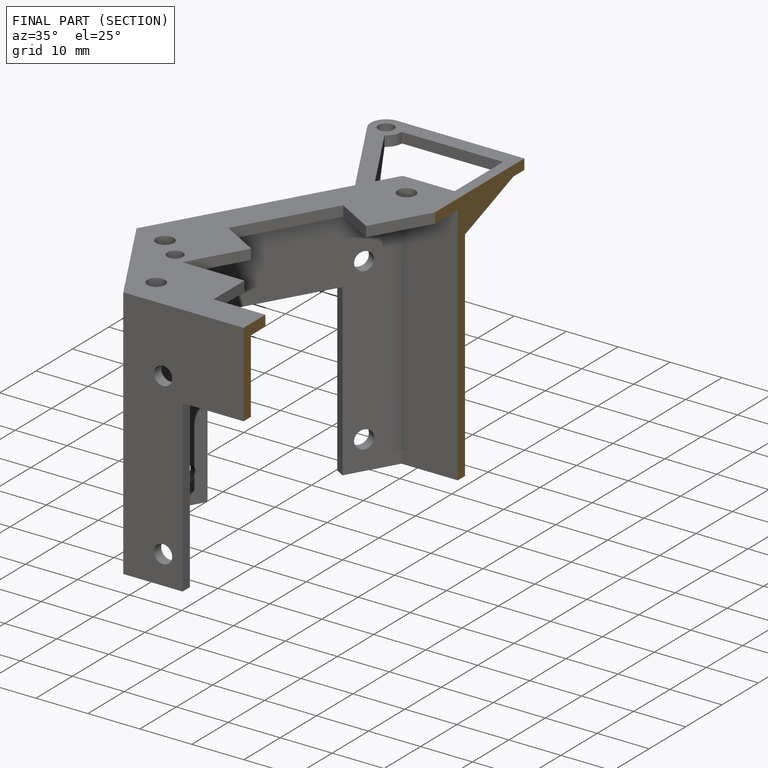
[diagram: finished part — half-section view (interior)]
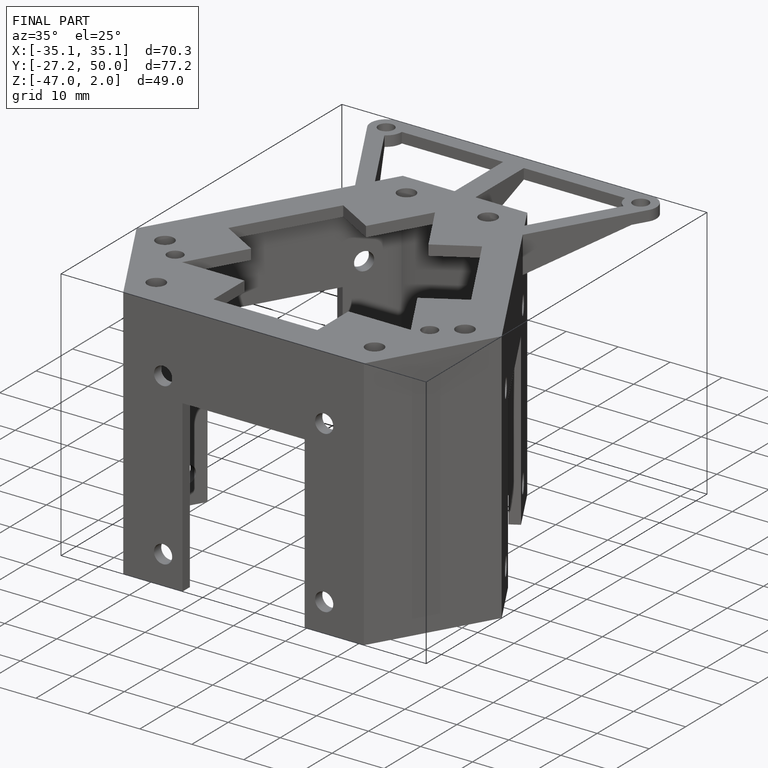
[diagram: finished part — iso view with bounding-box wireframe]
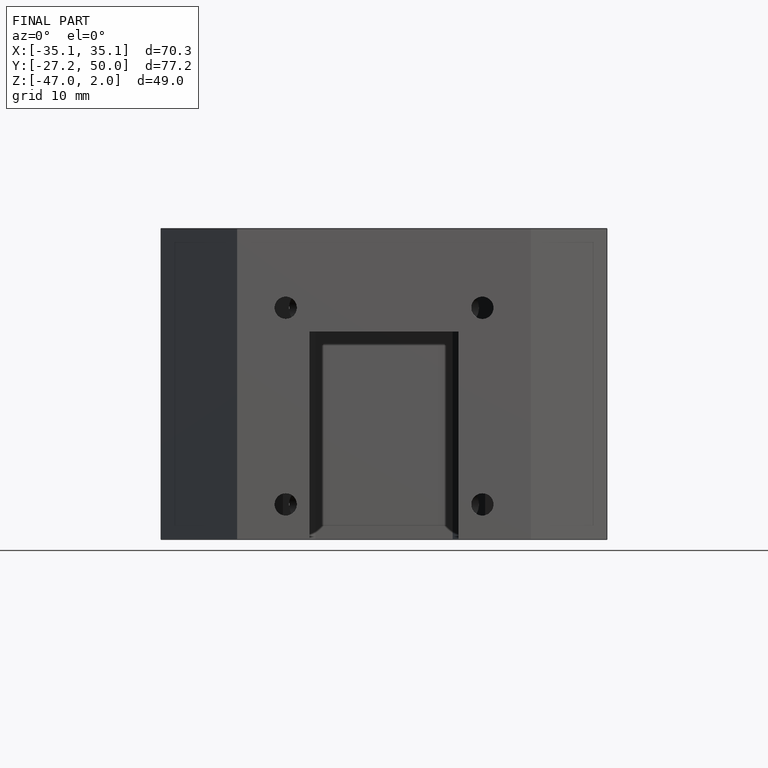
[diagram: finished part — front view with bounding-box wireframe]
